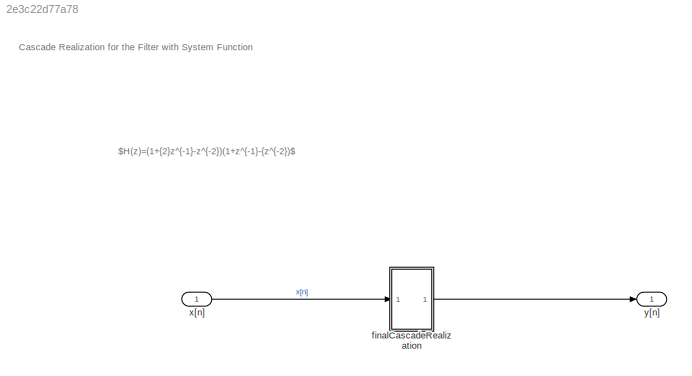
MODEL slx_2e3c22d77a78
KIND model
CONFIG AbsTol = auto
CONFIG EnableMultiTasking = off
CONFIG FixedStep = auto
CONFIG MaxStep = auto
CONFIG MinStep = auto
CONFIG RelTol = 1e-3
CONFIG SampleTimeConstraint = Unconstrained
CONFIG SolverName = FixedStepDiscrete
CONFIG StartTime = 0.0
CONFIG StopTime = 10.0
BLOCK [ModelReference] finalCascadeRealization
  ModelNameDialog = finalCascadeRealization
  ModelReferenceVersion = 1.11
  Ports = [1, 1]
BLOCK [Inport] x[n]
  OutDataTypeStr = double
  PortDimensions = 1
  SampleTime = [0.20000000000000001,0]
  SamplingMode = Sample based
  SignalType = real
BLOCK [Outport] y[n]
  OutDataTypeStr = double
  PortDimensions = 1
  SampleTime = [0.20000000000000001,0]
  SamplingMode = Sample based
  SignalType = real
ANNOTATION (root): Cascade Realization for the Filter with System Function
ANNOTATION (root): $H(z)=(1+{2}z^{-1}-z^{-2})(1+z^{-1}-{z^{-2})$
LINE finalCascadeRealization:1 -> y[n]:1
LINE x[n]:1 -> finalCascadeRealization:1
